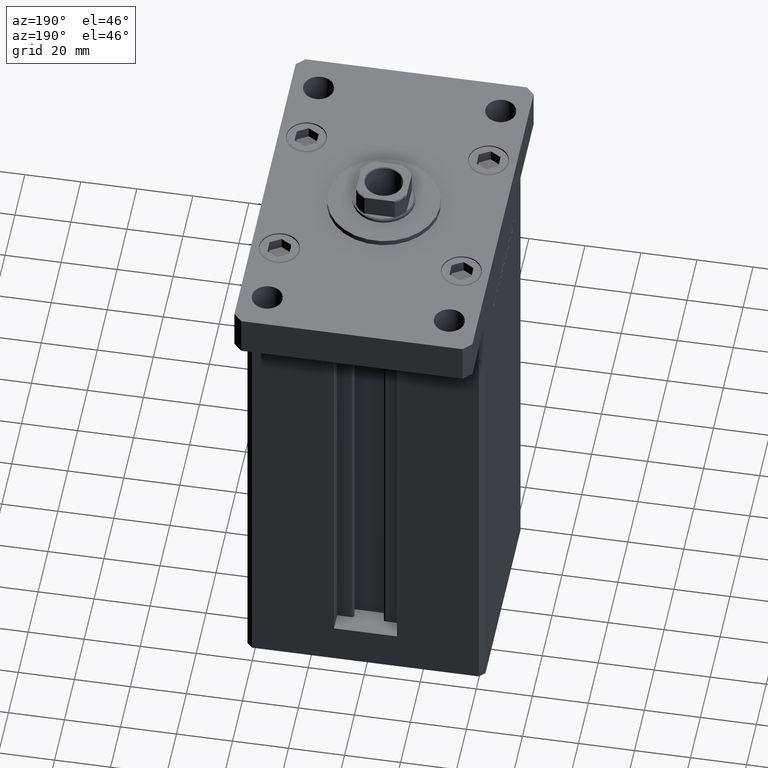
[diagram: clean part render]
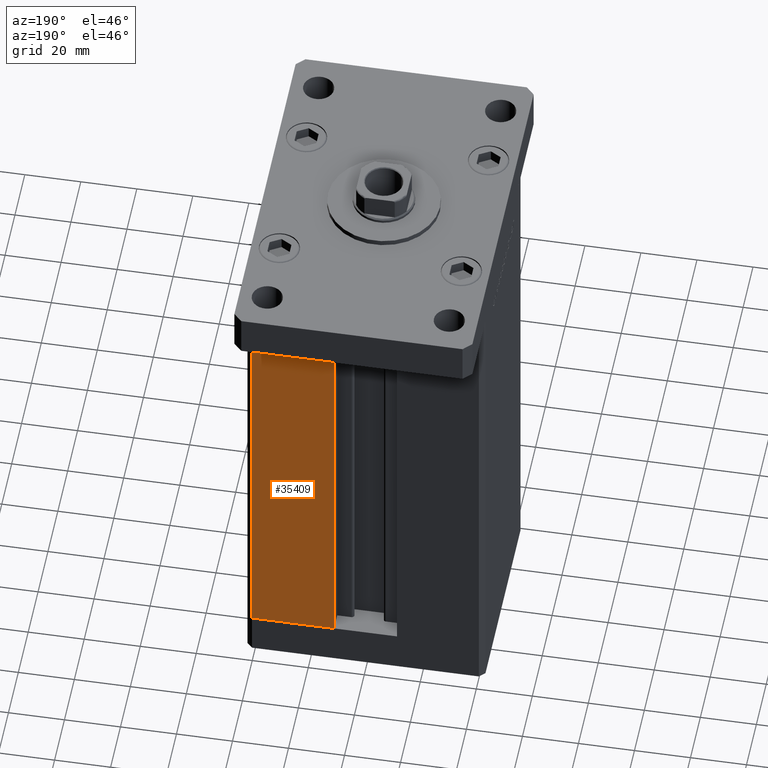
[diagram: same view with one face highlighted and labeled with its STEP entity id]
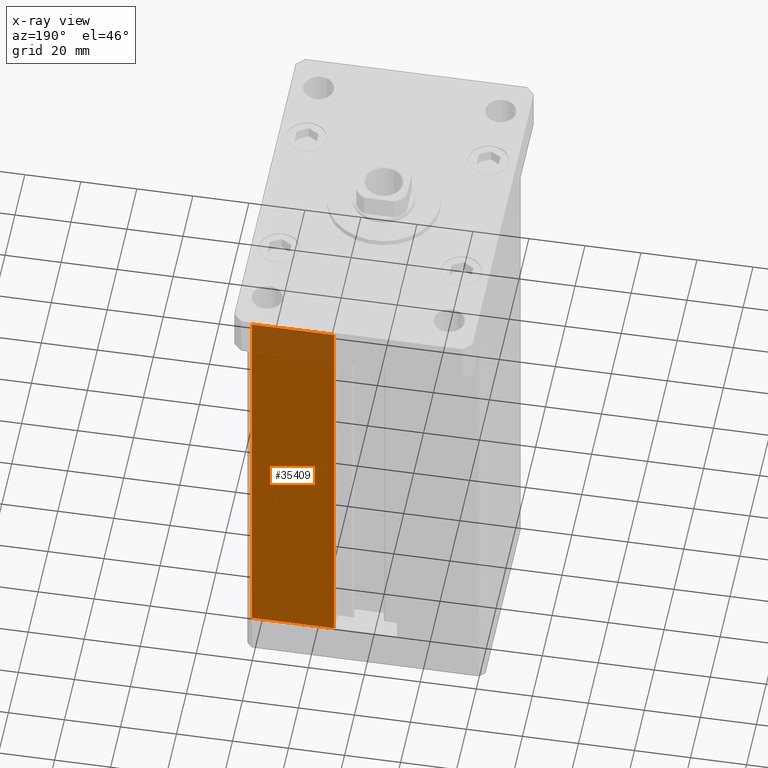
[diagram: x-ray of the same camera — body ghosted, the highlighted face saturated]
A machine part, auxiliary view. The second image highlights one B-rep face of the part: STEP entity #35409.
The next image is the same camera in x-ray: the body ghosted, the highlighted face saturated — about 9% of this face is hidden behind the body in this view.
In plain terms, the highlighted planar face has unit normal (-0, -1, 0).
Its self-contained STEP definition (entity closure, byte-faithful):
#2276 = VECTOR ( 'NONE', #47728, 1000.000000000000000 ) ;
#3469 = DIRECTION ( 'NONE',  ( 1.000000000000000000, 0.000000000000000000, 0.000000000000000000 ) ) ;
#6264 = LINE ( 'NONE', #26846, #44660 ) ;
#6559 = LINE ( 'NONE', #10079, #32498 ) ;
#10042 = CARTESIAN_POINT ( 'NONE',  ( 40.50000000000000000, 37.50000000000000711, 148.5000000000000000 ) ) ;
#10079 = CARTESIAN_POINT ( 'NONE',  ( 11.25000000000000000, 37.50000000000000000, 0.000000000000000000 ) ) ;
#11938 = EDGE_CURVE ( 'NONE', #47919, #35132, #6559, .T. ) ;
#12394 = ORIENTED_EDGE ( 'NONE', *, *, #11938, .T. ) ;
#13419 = EDGE_CURVE ( 'NONE', #39084, #47919, #37996, .T. ) ;
#13875 = DIRECTION ( 'NONE',  ( -1.000000000000000000, 2.372271420139223331E-16, 0.000000000000000000 ) ) ;
#14263 = EDGE_CURVE ( 'NONE', #21715, #39084, #15756, .T. ) ;
#15756 = LINE ( 'NONE', #48810, #2276 ) ;
#16372 = AXIS2_PLACEMENT_3D ( 'NONE', #28460, #28977, #17802 ) ;
#17802 = DIRECTION ( 'NONE',  ( 1.000000000000000000, -2.372271420139223331E-16, 0.000000000000000000 ) ) ;
#20061 = FACE_OUTER_BOUND ( 'NONE', #25404, .T. ) ;
#20325 = PLANE ( 'NONE',  #16372 ) ;
#21715 = VERTEX_POINT ( 'NONE', #10042 ) ;
#22929 = EDGE_CURVE ( 'NONE', #35132, #21715, #6264, .T. ) ;
#25404 = EDGE_LOOP ( 'NONE', ( #30484, #12394, #34654, #52541 ) ) ;
#26453 = VECTOR ( 'NONE', #13875, 1000.000000000000000 ) ;
#26610 = DIRECTION ( 'NONE',  ( -0.000000000000000000, -0.000000000000000000, 1.000000000000000000 ) ) ;
#26846 = CARTESIAN_POINT ( 'NONE',  ( -11.25000000000000000, 37.50000000000000000, 148.5000000000000000 ) ) ;
#28460 = CARTESIAN_POINT ( 'NONE',  ( -11.25000000000000000, 37.50000000000000000, 148.5000000000000000 ) ) ;
#28977 = DIRECTION ( 'NONE',  ( -2.372271420139223331E-16, -1.000000000000000000, 0.000000000000000000 ) ) ;
#30484 = ORIENTED_EDGE ( 'NONE', *, *, #13419, .T. ) ;
#32498 = VECTOR ( 'NONE', #26610, 1000.000000000000000 ) ;
#34136 = CARTESIAN_POINT ( 'NONE',  ( 40.50000000000000000, 37.50000000000000711, 0.000000000000000000 ) ) ;
#34654 = ORIENTED_EDGE ( 'NONE', *, *, #22929, .T. ) ;
#35132 = VERTEX_POINT ( 'NONE', #44242 ) ;
#35409 = ADVANCED_FACE ( 'NONE', ( #20061 ), #20325, .F. ) ;
#37996 = LINE ( 'NONE', #51265, #26453 ) ;
#39084 = VERTEX_POINT ( 'NONE', #34136 ) ;
#44242 = CARTESIAN_POINT ( 'NONE',  ( 11.24999999999999289, 37.50000000000000000, 148.5000000000000000 ) ) ;
#44660 = VECTOR ( 'NONE', #3469, 1000.000000000000000 ) ;
#46722 = CARTESIAN_POINT ( 'NONE',  ( 11.25000000000000000, 37.50000000000000000, 0.000000000000000000 ) ) ;
#47728 = DIRECTION ( 'NONE',  ( -0.000000000000000000, -0.000000000000000000, -1.000000000000000000 ) ) ;
#47919 = VERTEX_POINT ( 'NONE', #46722 ) ;
#48810 = CARTESIAN_POINT ( 'NONE',  ( 40.50000000000000000, 37.50000000000000711, 148.5000000000000000 ) ) ;
#51265 = CARTESIAN_POINT ( 'NONE',  ( -11.25000000000000000, 37.50000000000000000, 0.000000000000000000 ) ) ;
#52541 = ORIENTED_EDGE ( 'NONE', *, *, #14263, .T. ) ;